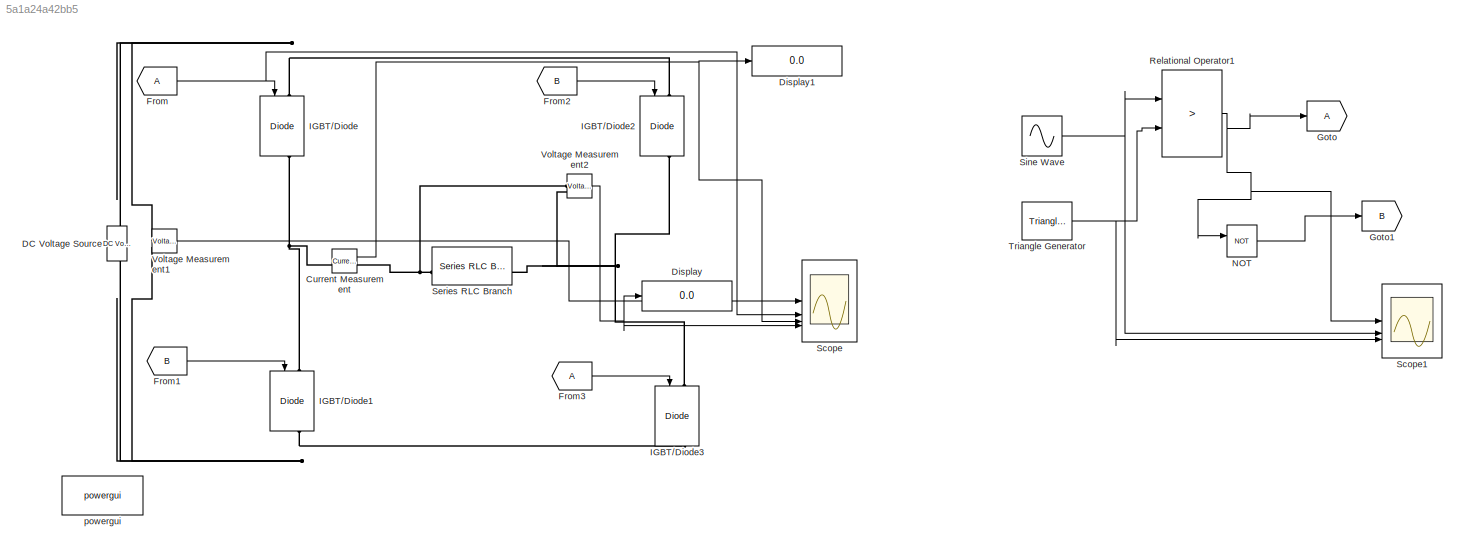
MODEL slx_5a1a24a42bb5
KIND model
CONFIG AbsTol = auto
CONFIG EnableMultiTasking = off
CONFIG FixedStep = auto
CONFIG MaxStep = auto
CONFIG MinStep = auto
CONFIG RelTol = 1e-3
CONFIG SampleTimeConstraint = Unconstrained
CONFIG SolverName = VariableStepAuto
CONFIG StartTime = 0.0
CONFIG StopTime = 5
BLOCK [Reference] Current Measurement  REF=spsCurrentMeasurementLib/Current Measurement
  LibrarySourceBlock = sps_lib/Sensors and Measurements/Current Measurement
  SourceBlock = spsCurrentMeasurementLib/Current Measurement
  SourceType = Current Measurement
  UserDataPersistent = on
BLOCK [Reference] DC Voltage Source  REF=spsDCVoltageSourceLib/DC Voltage Source
  LibrarySourceBlock = sps_lib/Sources/DC Voltage Source
  SourceBlock = spsDCVoltageSourceLib/DC Voltage Source
  SourceType = DC Voltage Source
BLOCK [Display] Display
  Decimation = 1
BLOCK [Display] Display1
  Decimation = 1
BLOCK [From] From
BLOCK [From] From1
  GotoTag = B
BLOCK [From] From2
  GotoTag = B
BLOCK [From] From3
BLOCK [Goto] Goto
BLOCK [Goto] Goto1
  GotoTag = B
BLOCK [Reference] IGBT//Diode  REF=spsIGBTDiodeLib/IGBT//Diode
  LibrarySourceBlock = sps_lib/Power Electronics/IGBT//Diode
  NameLocation = left
  SourceBlock = spsIGBTDiodeLib/IGBT//Diode
  SourceType = IGBT/Diode
BLOCK [Reference] IGBT//Diode1  REF=spsIGBTDiodeLib/IGBT//Diode
  LibrarySourceBlock = sps_lib/Power Electronics/IGBT//Diode
  NameLocation = left
  SourceBlock = spsIGBTDiodeLib/IGBT//Diode
  SourceType = IGBT/Diode
BLOCK [Reference] IGBT//Diode2  REF=spsIGBTDiodeLib/IGBT//Diode
  LibrarySourceBlock = sps_lib/Power Electronics/IGBT//Diode
  NameLocation = left
  SourceBlock = spsIGBTDiodeLib/IGBT//Diode
  SourceType = IGBT/Diode
BLOCK [Reference] IGBT//Diode3  REF=spsIGBTDiodeLib/IGBT//Diode
  LibrarySourceBlock = sps_lib/Power Electronics/IGBT//Diode
  NameLocation = left
  SourceBlock = spsIGBTDiodeLib/IGBT//Diode
  SourceType = IGBT/Diode
BLOCK [Logic] NOT
  AllPortsSameDT = off
  IconShape = distinctive
  Operator = NOT
  OutDataTypeStr = boolean
BLOCK [RelationalOperator] Relational Operator1
  InputSameDT = off
  Operator = >
  OutDataTypeStr = boolean
  RndMeth = Simplest
BLOCK [Scope] Scope
  Floating = off
  NumInputPorts = 4
  ScopeSpecificationString = Simulink.scopes.TimeScopeBlockCfg('CurrentConfiguration', extmgr.ConfigurationSet(extmgr.Configuration('Core','General UI',true),extmgr.Configuration('Core','Source UI',true),extmgr.Configuration('Sources','WiredSimulink',true),extmgr.Configuration('Visuals','Time Domain',true,'SerializedDisplays',{struct('MinYLimReal','-124.9775','MaxYLimReal','124.9975','YLabelReal','','MinYLimMag',' 0.00000','M...<+1469ch>
BLOCK [Scope] Scope1
  Floating = off
  NumInputPorts = 3
  ScopeSpecificationString = Simulink.scopes.TimeScopeBlockCfg('CurrentConfiguration', extmgr.ConfigurationSet(extmgr.Configuration('Core','General UI',true),extmgr.Configuration('Core','Source UI',true),extmgr.Configuration('Sources','WiredSimulink',true,'DataLoggingVariableName','ScopeData1'),extmgr.Configuration('Visuals','Time Domain',true,'SerializedDisplays',{struct('MinYLimReal','-0.125','MaxYLimReal','1.125','YLabelRe...<+2780ch>
BLOCK [Reference] Series RLC Branch  REF=spsSeriesRLCBranchLib/Series RLC Branch
  LibrarySourceBlock = sps_lib/Passives/Series RLC Branch
  SourceBlock = spsSeriesRLCBranchLib/Series RLC Branch
  SourceType = Series RLC Branch
BLOCK [Sin] Sine Wave
  Amplitude = 20
  Frequency = 50
  Phase = 1
  SampleTime = 0
BLOCK [Reference] Triangle Generator  REF=spsTriangleGeneratorLib/Triangle
Generator
  LibrarySourceBlock = sps_lib/Sources/Signal Generator Sources/Triangle\nGenerator
  SourceBlock = spsTriangleGeneratorLib/Triangle\nGenerator
  SourceType = Triangle Generator
BLOCK [Reference] Voltage Measurement1  REF=spsVoltageMeasurementLib/Voltage Measurement
  LibrarySourceBlock = sps_lib/Sensors and Measurements/Voltage Measurement
  SourceBlock = spsVoltageMeasurementLib/Voltage Measurement
  SourceType = Voltage Measurement
  UserDataPersistent = on
BLOCK [Reference] Voltage Measurement2  REF=spsVoltageMeasurementLib/Voltage Measurement
  LibrarySourceBlock = sps_lib/Sensors and Measurements/Voltage Measurement
  SourceBlock = spsVoltageMeasurementLib/Voltage Measurement
  SourceType = Voltage Measurement
  UserDataPersistent = on
BLOCK [Reference] powergui  REF=sps_lib/powergui
  Priority = 1
  SourceBlock = sps_lib/powergui
  SourceType = PSB option menu block
NET Current Measurement:1 -> Display1:1, Scope:3
LINE From1:1 -> IGBT//Diode1:1
LINE From2:1 -> IGBT//Diode2:1
LINE From3:1 -> IGBT//Diode3:1
NET From:1 -> IGBT//Diode:1, Scope:2
LINE NOT:1 -> Goto1:1
NET Relational Operator1:1 -> Goto:1, NOT:1, Scope1:1
NET Sine Wave:1 -> Relational Operator1:1, Scope1:2
NET Triangle Generator:1 -> Relational Operator1:2, Scope1:3
LINE Voltage Measurement1:1 -> Scope:1
NET Voltage Measurement2:1 -> Display:1, Scope:4
PNET net1: Current Measurement:LConn1 -- IGBT//Diode1:LConn1 -- IGBT//Diode:RConn1
PNET net2: Current Measurement:RConn1 -- Series RLC Branch:LConn1 -- Voltage Measurement2:LConn1
PNET net3: DC Voltage Source:LConn1 -- IGBT//Diode1:RConn1 -- IGBT//Diode3:RConn1 -- Voltage Measurement1:LConn2
PNET net4: DC Voltage Source:RConn1 -- IGBT//Diode2:LConn1 -- IGBT//Diode:LConn1 -- Voltage Measurement1:LConn1
PNET net5: IGBT//Diode2:RConn1 -- IGBT//Diode3:LConn1 -- Series RLC Branch:RConn1 -- Voltage Measurement2:LConn2
note: NET lines group one-source signal fan-out (src -> all destinations, sorted); 1:1 wires keep LINE; PNET lines group multi-terminal physical nets as a canonical sorted terminal list (undirected conserving connections); 2-terminal nets keep the pairwise PLINE form
